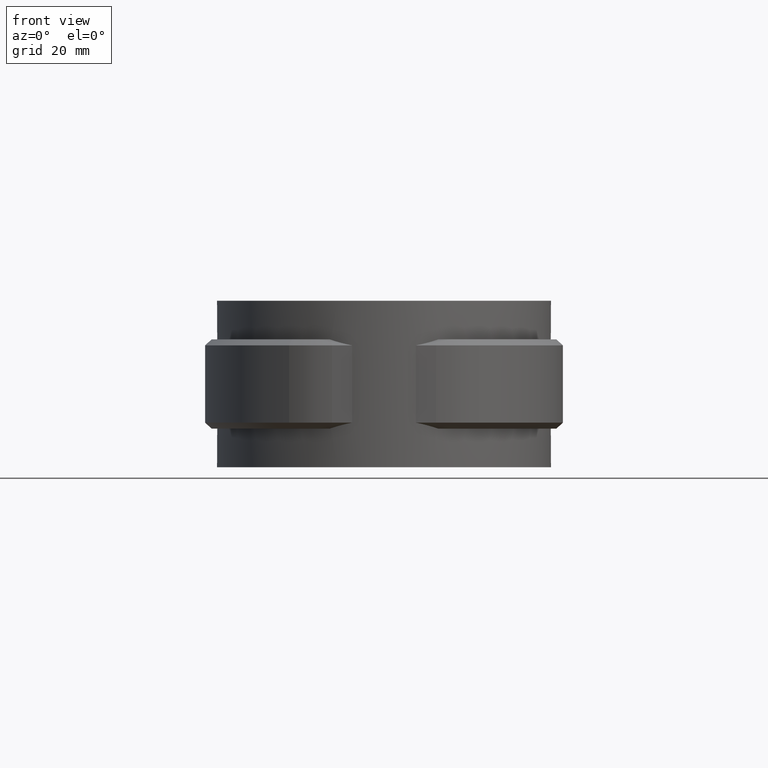
[diagram: clean part render]
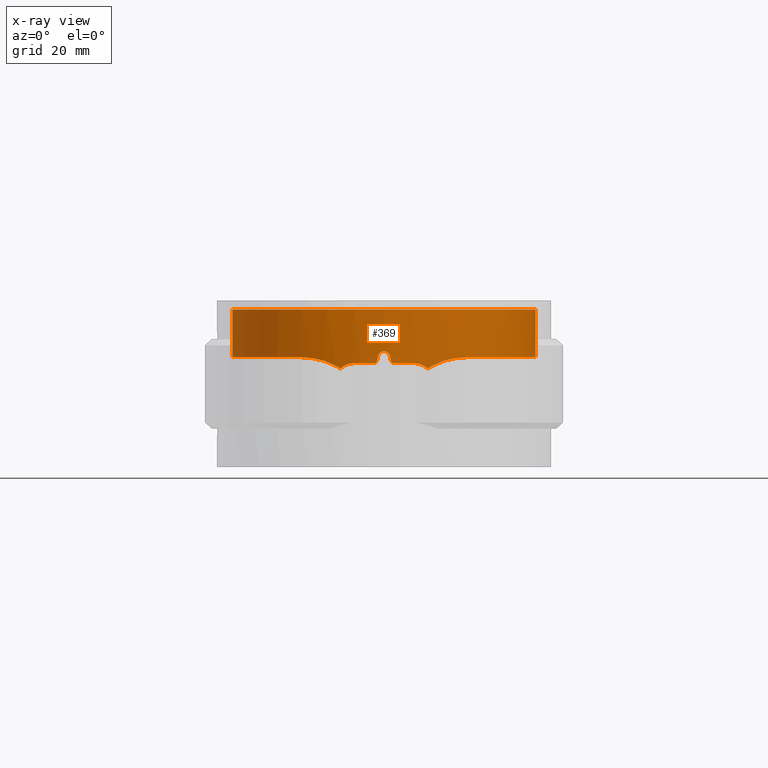
[diagram: x-ray — body ghosted, one internal face saturated and labeled with its STEP entity id]
A machine part, front view, then the same camera in x-ray: the body is ghosted and one INTERNAL B-rep face — a face not visible from any outside direction — is saturated and labeled: STEP entity #369.
In plain terms, the highlighted cylindrical surface (partial cylindrical patch) has radius 25.5 mm, axis along (0, 0, 1).
Its self-contained STEP definition (entity closure, byte-faithful):
#369 = ADVANCED_FACE( '', ( #736 ), #737, .F. );
#736 = FACE_OUTER_BOUND( '', #1583, .T. );
#737 = CYLINDRICAL_SURFACE( '', #1584, 25.5000000000000 );
#1583 = EDGE_LOOP( '', ( #3260, #3261, #3262, #3263, #3264, #3265, #3266, #3267, #3268, #3269, #3270, #3271, #3272, #3273, #3274, #3275, #3276, #3277 ) );
#1584 = AXIS2_PLACEMENT_3D( '', #3278, #3279, #3280 );
#3260 = ORIENTED_EDGE( '', *, *, #7416, .T. );
#3261 = ORIENTED_EDGE( '', *, *, #7417, .T. );
#3262 = ORIENTED_EDGE( '', *, *, #7418, .T. );
#3263 = ORIENTED_EDGE( '', *, *, #7419, .T. );
#3264 = ORIENTED_EDGE( '', *, *, #7420, .T. );
#3265 = ORIENTED_EDGE( '', *, *, #7421, .T. );
#3266 = ORIENTED_EDGE( '', *, *, #7422, .T. );
#3267 = ORIENTED_EDGE( '', *, *, #7423, .T. );
#3268 = ORIENTED_EDGE( '', *, *, #7424, .T. );
#3269 = ORIENTED_EDGE( '', *, *, #7393, .T. );
#3270 = ORIENTED_EDGE( '', *, *, #7401, .T. );
#3271 = ORIENTED_EDGE( '', *, *, #7406, .T. );
#3272 = ORIENTED_EDGE( '', *, *, #7425, .T. );
#3273 = ORIENTED_EDGE( '', *, *, #7426, .F. );
#3274 = ORIENTED_EDGE( '', *, *, #7427, .T. );
#3275 = ORIENTED_EDGE( '', *, *, #7428, .T. );
#3276 = ORIENTED_EDGE( '', *, *, #7429, .T. );
#3277 = ORIENTED_EDGE( '', *, *, #7430, .T. );
#3278 = CARTESIAN_POINT( '', ( 0.000000000000000, 0.000000000000000, 0.000000000000000 ) );
#3279 = DIRECTION( '', ( 0.000000000000000, 0.000000000000000, 1.00000000000000 ) );
#3280 = DIRECTION( '', ( 1.00000000000000, -6.12303176911189E-017, 0.000000000000000 ) );
#7393 = EDGE_CURVE( '', #8387, #8385, #8388, .T. );
#7401 = EDGE_CURVE( '', #8385, #8401, #8402, .F. );
#7406 = EDGE_CURVE( '', #8401, #8408, #8410, .T. );
#7416 = EDGE_CURVE( '', #8428, #8429, #8430, .T. );
#7417 = EDGE_CURVE( '', #8429, #8431, #8432, .T. );
#7418 = EDGE_CURVE( '', #8431, #8433, #8434, .T. );
#7419 = EDGE_CURVE( '', #8433, #8435, #8436, .T. );
#7420 = EDGE_CURVE( '', #8435, #8437, #8438, .T. );
#7421 = EDGE_CURVE( '', #8437, #8439, #8440, .T. );
#7422 = EDGE_CURVE( '', #8439, #8441, #8442, .T. );
#7423 = EDGE_CURVE( '', #8441, #8443, #8444, .T. );
#7424 = EDGE_CURVE( '', #8443, #8387, #8445, .T. );
#7425 = EDGE_CURVE( '', #8408, #8446, #8447, .T. );
#7426 = EDGE_CURVE( '', #8448, #8446, #8449, .T. );
#7427 = EDGE_CURVE( '', #8448, #8450, #8451, .T. );
#7428 = EDGE_CURVE( '', #8450, #8452, #8453, .T. );
#7429 = EDGE_CURVE( '', #8452, #8454, #8455, .T. );
#7430 = EDGE_CURVE( '', #8454, #8428, #8456, .T. );
#8385 = VERTEX_POINT( '', #10150 );
#8387 = VERTEX_POINT( '', #10155 );
#8388 = B_SPLINE_CURVE_WITH_KNOTS( '', 3, ( #10156, #10157, #10158, #10159, #10160, #10161, #10162, #10163, #10164, #10165 ), .UNSPECIFIED., .F., .F., ( 4, 2, 2, 2, 4 ), ( 1.73472347597681E-018, 0.000656875290145861, 0.00131375058029172, 0.00197062587043758, 0.00262750116058344 ), .UNSPECIFIED. );
#8401 = VERTEX_POINT( '', #10211 );
#8402 = B_SPLINE_CURVE_WITH_KNOTS( '', 3, ( #10212, #10213, #10214, #10215 ), .UNSPECIFIED., .F., .F., ( 4, 4 ), ( 6.25463444138550E-018, 0.000798238028060253 ), .UNSPECIFIED. );
#8408 = VERTEX_POINT( '', #10238 );
#8410 = B_SPLINE_CURVE_WITH_KNOTS( '', 3, ( #10246, #10247, #10248, #10249, #10250, #10251, #10252, #10253, #10254, #10255 ), .UNSPECIFIED., .F., .F., ( 4, 2, 2, 2, 4 ), ( 0.000000000000000, 0.00172797127034805, 0.00345594254069610, 0.00518391381104415, 0.00691188508139221 ), .UNSPECIFIED. );
#8428 = VERTEX_POINT( '', #10374 );
#8429 = VERTEX_POINT( '', #10375 );
#8430 = B_SPLINE_CURVE_WITH_KNOTS( '', 3, ( #10376, #10377, #10378, #10379 ), .UNSPECIFIED., .F., .F., ( 4, 4 ), ( 1.44722106622351E-016, 0.000798238028063362 ), .UNSPECIFIED. );
#8431 = VERTEX_POINT( '', #10380 );
#8432 = B_SPLINE_CURVE_WITH_KNOTS( '', 3, ( #10381, #10382, #10383, #10384, #10385, #10386, #10387, #10388, #10389, #10390 ), .UNSPECIFIED., .F., .F., ( 4, 2, 2, 2, 4 ), ( 1.08567168088659E-014, 0.000656997080052869, 0.00131399416009488, 0.00197099124013689, 0.00262798832017891 ), .UNSPECIFIED. );
#8433 = VERTEX_POINT( '', #10391 );
#8434 = CIRCLE( '', #10392, 25.5000000000000 );
#8435 = VERTEX_POINT( '', #10393 );
#8436 = B_SPLINE_CURVE_WITH_KNOTS( '', 3, ( #10394, #10395, #10396, #10397, #10398, #10399 ), .UNSPECIFIED., .F., .F., ( 4, 2, 4 ), ( 5.30005840330695E-013, 0.000336083198820052, 0.000672166397110099 ), .UNSPECIFIED. );
#8437 = VERTEX_POINT( '', #10400 );
#8438 = ELLIPSE( '', #10401, 116.166725925969, 25.5000000000000 );
#8439 = VERTEX_POINT( '', #10402 );
#8440 = B_SPLINE_CURVE_WITH_KNOTS( '', 3, ( #10403, #10404, #10405, #10406, #10407, #10408, #10409, #10410, #10411, #10412 ), .UNSPECIFIED., .F., .F., ( 4, 2, 2, 2, 4 ), ( 9.26342742239755E-019, 0.000671619266939465, 0.00134323853387893, 0.00201485780081839, 0.00268647706775786 ), .UNSPECIFIED. );
#8441 = VERTEX_POINT( '', #10413 );
#8442 = ELLIPSE( '', #10414, 116.166785185313, 25.5000000000000 );
#8443 = VERTEX_POINT( '', #10415 );
#8444 = B_SPLINE_CURVE_WITH_KNOTS( '', 3, ( #10416, #10417, #10418, #10419, #10420, #10421 ), .UNSPECIFIED., .F., .F., ( 4, 2, 4 ), ( 1.78811203067275E-018, 0.000336089115589762, 0.000672178231179522 ), .UNSPECIFIED. );
#8445 = CIRCLE( '', #10422, 25.5000000000000 );
#8446 = VERTEX_POINT( '', #10423 );
#8447 = B_SPLINE_CURVE_WITH_KNOTS( '', 3, ( #10424, #10425, #10426, #10427, #10428, #10429, #10430, #10431, #10432, #10433, #10434, #10435, #10436, #10437, #10438, #10439, #10440, #10441, #10442, #10443, #10444, #10445, #10446, #10447, #10448, #10449, #10450, #10451, #10452, #10453, #10454, #10455, #10456, #10457, #10458, #10459, #10460, #10461, #10462, #10463, #10464, #10465 ), .UNSPECIFIED., .F., .F., ( 4, 2, 2, 2, 2, 2, 2, 2, 2, 2, 2, 2, 2, 2, 2, 2, 2, 2, 2, 2, 4 ), ( 6.25463444138550E-018, 0.00367893687146762, 0.00735787374293524, 0.00919734217866904, 0.0110368106144029, 0.0147157474858705, 0.0165552159216043, 0.0183946843573381, 0.0220736212288057, 0.0257525581002733, 0.0294314949717409, 0.0331104318432085, 0.0349499002789423, 0.0367893687146761, 0.0404683055861437, 0.0423077740218775, 0.0441472424576113, 0.0478261793290789, 0.0515051162005465, 0.0551840530720141, 0.0588629899434817 ), .UNSPECIFIED. );
#8448 = VERTEX_POINT( '', #10466 );
#8449 = LINE( '', #10467, #10468 );
#8450 = VERTEX_POINT( '', #10469 );
#8451 = CIRCLE( '', #10470, 25.5000000000000 );
#8452 = VERTEX_POINT( '', #10471 );
#8453 = LINE( '', #10472, #10473 );
#8454 = VERTEX_POINT( '', #10474 );
#8455 = B_SPLINE_CURVE_WITH_KNOTS( '', 3, ( #10475, #10476, #10477, #10478, #10479, #10480, #10481, #10482, #10483, #10484, #10485, #10486, #10487, #10488, #10489, #10490, #10491, #10492, #10493, #10494, #10495, #10496, #10497, #10498, #10499, #10500, #10501, #10502, #10503, #10504, #10505, #10506, #10507, #10508, #10509, #10510, #10511, #10512, #10513, #10514, #10515, #10516 ), .UNSPECIFIED., .F., .F., ( 4, 2, 2, 2, 2, 2, 2, 2, 2, 2, 2, 2, 2, 2, 2, 2, 2, 2, 2, 2, 4 ), ( 8.67361737988404E-019, 0.00367893654871731, 0.00735787309743461, 0.00919734137179327, 0.0110368096461519, 0.0147157461948692, 0.0165552144692279, 0.0183946827435865, 0.0220736192923038, 0.0257525558410211, 0.0294314923897385, 0.0331104289384558, 0.0349498972128144, 0.0367893654871731, 0.0404683020358904, 0.0423077703102490, 0.0441472385846077, 0.0478261751333250, 0.0515051116820423, 0.0551840482307596, 0.0588629847794769 ), .UNSPECIFIED. );
#8456 = B_SPLINE_CURVE_WITH_KNOTS( '', 3, ( #10517, #10518, #10519, #10520, #10521, #10522, #10523, #10524, #10525, #10526 ), .UNSPECIFIED., .F., .F., ( 4, 2, 2, 2, 4 ), ( 1.73472347597681E-018, 0.00173657544033172, 0.00347315088066344, 0.00520972632099516, 0.00694630176132688 ), .UNSPECIFIED. );
#10150 = CARTESIAN_POINT( '', ( -7.34939546608904, -24.4179521312298, -9.90570993450898 ) );
#10155 = CARTESIAN_POINT( '', ( -5.00000000000005, -25.0049995001000, -9.00000000000000 ) );
#10156 = CARTESIAN_POINT( '', ( -5.00000000000004, -25.0049995001000, -9.00000000000000 ) );
#10157 = CARTESIAN_POINT( '', ( -5.21785024917576, -24.9614381616615, -9.00000000000000 ) );
#10158 = CARTESIAN_POINT( '', ( -5.43170297572860, -24.9157182564734, -9.02015661897742 ) );
#10159 = CARTESIAN_POINT( '', ( -5.85190055052567, -24.8203882604455, -9.09853812784654 ) );
#10160 = CARTESIAN_POINT( '', ( -6.05950288665346, -24.7704539655439, -9.15726976414928 ) );
#10161 = CARTESIAN_POINT( '', ( -6.46137466474212, -24.6686765420101, -9.31240280371759 ) );
#10162 = CARTESIAN_POINT( '', ( -6.65244226158825, -24.6176876953620, -9.40728225736061 ) );
#10163 = CARTESIAN_POINT( '', ( -7.01566762756749, -24.5166462480015, -9.63075750786103 ) );
#10164 = CARTESIAN_POINT( '', ( -7.18870220699882, -24.4663181163641, -9.76018572371769 ) );
#10165 = CARTESIAN_POINT( '', ( -7.34939546608738, -24.4179521312303, -9.90570993450457 ) );
#10211 = CARTESIAN_POINT( '', ( -8.00834492137898, -24.2098412142712, -9.50509198069123 ) );
#10212 = CARTESIAN_POINT( '', ( -8.00834492137898, -24.2098412142712, -9.50509198069124 ) );
#10213 = CARTESIAN_POINT( '', ( -7.78678672940062, -24.2831301881978, -9.63391701784463 ) );
#10214 = CARTESIAN_POINT( '', ( -7.56687878413608, -24.3524932875473, -9.76706377273395 ) );
#10215 = CARTESIAN_POINT( '', ( -7.34939546609141, -24.4179521312291, -9.90570993451293 ) );
#10238 = CARTESIAN_POINT( '', ( -14.0380773796952, -21.2880807843660, -8.00256714084615 ) );
#10246 = CARTESIAN_POINT( '', ( -8.00834492137898, -24.2098412142712, -9.50509198069123 ) );
#10247 = CARTESIAN_POINT( '', ( -8.48983332359674, -24.0505702315961, -9.21551088680596 ) );
#10248 = CARTESIAN_POINT( '', ( -8.98884999455234, -23.8693963122353, -8.99045015204694 ) );
#10249 = CARTESIAN_POINT( '', ( -10.0012845353573, -23.4632012346555, -8.61836442464060 ) );
#10250 = CARTESIAN_POINT( '', ( -10.5175586698763, -23.2369189913460, -8.47219902970376 ) );
#10251 = CARTESIAN_POINT( '', ( -11.5430829606839, -22.7449044919392, -8.24286530814061 ) );
#10252 = CARTESIAN_POINT( '', ( -12.0531284718486, -22.4790097879914, -8.15951322728733 ) );
#10253 = CARTESIAN_POINT( '', ( -13.0588333618892, -21.9100583804314, -8.04379078831736 ) );
#10254 = CARTESIAN_POINT( '', ( -13.5529697894653, -21.6079770661447, -8.01159288399982 ) );
#10255 = CARTESIAN_POINT( '', ( -14.0380773796952, -21.2880807843659, -8.00256714084613 ) );
#10374 = CARTESIAN_POINT( '', ( 8.00834492137896, -24.2098412142711, -9.50509198069098 ) );
#10375 = CARTESIAN_POINT( '', ( 7.34939546608284, -24.4179521312317, -9.90570993450448 ) );
#10376 = CARTESIAN_POINT( '', ( 8.00834492137898, -24.2098412142712, -9.50509198069124 ) );
#10377 = CARTESIAN_POINT( '', ( 7.78678672939979, -24.2831301881981, -9.63391701784511 ) );
#10378 = CARTESIAN_POINT( '', ( 7.56687878413433, -24.3524932875478, -9.76706377273502 ) );
#10379 = CARTESIAN_POINT( '', ( 7.34939546608887, -24.4179521312299, -9.90570993451456 ) );
#10380 = CARTESIAN_POINT( '', ( 4.99999999999997, -25.0049995001000, -9.00000000000000 ) );
#10381 = CARTESIAN_POINT( '', ( 7.34939546607637, -24.4179521312336, -9.90570993449469 ) );
#10382 = CARTESIAN_POINT( '', ( 7.18867317861759, -24.4663268534216, -9.76015943554556 ) );
#10383 = CARTESIAN_POINT( '', ( 7.01739298879603, -24.5161510957156, -9.63197934985051 ) );
#10384 = CARTESIAN_POINT( '', ( 6.65451597925081, -24.6171258677583, -9.40839947675464 ) );
#10385 = CARTESIAN_POINT( '', ( 6.46172400214045, -24.6685855994418, -9.31255784850538 ) );
#10386 = CARTESIAN_POINT( '', ( 6.05972404065131, -24.7704004228430, -9.15733497262680 ) );
#10387 = CARTESIAN_POINT( '', ( 5.85412782847902, -24.8198636515774, -9.09909094924041 ) );
#10388 = CARTESIAN_POINT( '', ( 5.43379886269245, -24.9152618736964, -9.02041162410730 ) );
#10389 = CARTESIAN_POINT( '', ( 5.21787341681419, -24.9614335290602, -9.00000000000001 ) );
#10390 = CARTESIAN_POINT( '', ( 5.00000000000000, -25.0049995001000, -9.00000000000000 ) );
#10391 = CARTESIAN_POINT( '', ( 1.64999999946346, -25.4465616538221, -8.99999999999997 ) );
#10392 = AXIS2_PLACEMENT_3D( '', #13877, #13878, #13879 );
#10393 = CARTESIAN_POINT( '', ( 1.16219499999999, -25.4735019732658, -8.60975599999999 ) );
#10394 = CARTESIAN_POINT( '', ( 1.64999999892696, -25.4465616538569, -8.99999999999995 ) );
#10395 = CARTESIAN_POINT( '', ( 1.53659990932928, -25.4539147159428, -9.00000000024330 ) );
#10396 = CARTESIAN_POINT( '', ( 1.42648680303448, -25.4602242782139, -8.96144237389326 ) );
#10397 = CARTESIAN_POINT( '', ( 1.24913749939568, -25.4695414250784, -8.81968188045623 ) );
#10398 = CARTESIAN_POINT( '', ( 1.18713991431296, -25.4723638943821, -8.72062228805728 ) );
#10399 = CARTESIAN_POINT( '', ( 1.16219499999998, -25.4735019732658, -8.60975599999999 ) );
#10400 = CARTESIAN_POINT( '', ( 0.975609757981817, -25.4813301379683, -7.78048781325256 ) );
#10401 = AXIS2_PLACEMENT_3D( '', #13880, #13881, #13882 );
#10402 = CARTESIAN_POINT( '', ( -0.975610000000026, -25.4813301287021, -7.78048800000004 ) );
#10403 = CARTESIAN_POINT( '', ( 0.975609757981821, -25.4813301379683, -7.78048781325256 ) );
#10404 = CARTESIAN_POINT( '', ( 0.925760627941456, -25.4832387234868, -7.55893621431624 ) );
#10405 = CARTESIAN_POINT( '', ( 0.802002231077815, -25.4880019776319, -7.36098152789277 ) );
#10406 = CARTESIAN_POINT( '', ( 0.447412249788043, -25.4966914455417, -7.07730044565886 ) );
#10407 = CARTESIAN_POINT( '', ( 0.227096997064041, -25.5000000081517, -6.99999981140865 ) );
#10408 = CARTESIAN_POINT( '', ( -0.227098827707837, -25.4999999918483, -7.00000018172440 ) );
#10409 = CARTESIAN_POINT( '', ( -0.447442086841616, -25.4966908125914, -7.07731897433819 ) );
#10410 = CARTESIAN_POINT( '', ( -0.802000627794619, -25.4880019186867, -7.36098526735058 ) );
#10411 = CARTESIAN_POINT( '', ( -0.925760910065688, -25.4832387131592, -7.55893638128833 ) );
#10412 = CARTESIAN_POINT( '', ( -0.975610000000030, -25.4813301287021, -7.78048800000004 ) );
#10413 = CARTESIAN_POINT( '', ( -1.16219512100915, -25.4735019677449, -8.60975609337373 ) );
#10414 = AXIS2_PLACEMENT_3D( '', #13883, #13884, #13885 );
#10415 = CARTESIAN_POINT( '', ( -1.65000000000003, -25.4465616537873, -8.99999999999997 ) );
#10416 = CARTESIAN_POINT( '', ( -1.16219512100915, -25.4735019677449, -8.60975609337373 ) );
#10417 = CARTESIAN_POINT( '', ( -1.18714002699007, -25.4723638891226, -8.72062234662147 ) );
#10418 = CARTESIAN_POINT( '', ( -1.24913144108471, -25.4695417339208, -8.81967596727058 ) );
#10419 = CARTESIAN_POINT( '', ( -1.42648745791825, -25.4602242532433, -8.96144389594983 ) );
#10420 = CARTESIAN_POINT( '', ( -1.53659994153401, -25.4539147138594, -8.99999999999994 ) );
#10421 = CARTESIAN_POINT( '', ( -1.65000000000003, -25.4465616537873, -8.99999999999994 ) );
#10422 = AXIS2_PLACEMENT_3D( '', #13886, #13887, #13888 );
#10423 = CARTESIAN_POINT( '', ( -6.02727272727275, 24.7774490912821, -8.00435030719461 ) );
#10424 = CARTESIAN_POINT( '', ( -14.0380773796952, -21.2880807843660, -8.00256714084613 ) );
#10425 = CARTESIAN_POINT( '', ( -15.0765748335687, -20.6032605902036, -8.00207340689075 ) );
#10426 = CARTESIAN_POINT( '', ( -16.0523639473271, -19.8513548135207, -8.00459036403530 ) );
#10427 = CARTESIAN_POINT( '', ( -17.8836958658101, -18.2188939952168, -8.00903135403918 ) );
#10428 = CARTESIAN_POINT( '', ( -18.7392252450658, -17.3383246082448, -8.01096774511734 ) );
#10429 = CARTESIAN_POINT( '', ( -19.9303857377764, -15.9188956933258, -8.01148110754757 ) );
#10430 = CARTESIAN_POINT( '', ( -20.3134828182761, -15.4271260931492, -8.01128025687242 ) );
#10431 = CARTESIAN_POINT( '', ( -21.0386748467039, -14.4224812149987, -8.01020889057149 ) );
#10432 = CARTESIAN_POINT( '', ( -21.3810845038200, -13.9096038910828, -8.00934322425378 ) );
#10433 = CARTESIAN_POINT( '', ( -22.3491571729683, -12.3400402561434, -8.00627899012388 ) );
#10434 = CARTESIAN_POINT( '', ( -22.9159649377144, -11.2525798041516, -8.00350407266921 ) );
#10435 = CARTESIAN_POINT( '', ( -23.6482491570491, -9.55972343349784, -8.00235259351094 ) );
#10436 = CARTESIAN_POINT( '', ( -23.8726141413114, -8.98512090568259, -8.00261977236998 ) );
#10437 = CARTESIAN_POINT( '', ( -24.2809248362162, -7.81478040175772, -8.00388927620167 ) );
#10438 = CARTESIAN_POINT( '', ( -24.4645155229831, -7.21933194521092, -8.00485791612355 ) );
#10439 = CARTESIAN_POINT( '', ( -24.9456398910393, -5.43048289420763, -8.00775959323831 ) );
#10440 = CARTESIAN_POINT( '', ( -25.1774584165853, -4.22498207278109, -8.00958799193541 ) );
#10441 = CARTESIAN_POINT( '', ( -25.4667570883330, -1.78862216190127, -8.01053593061585 ) );
#10442 = CARTESIAN_POINT( '', ( -25.5242275512407, -0.556664814739391, -8.00964804073774 ) );
#10443 = CARTESIAN_POINT( '', ( -25.4572985075182, 1.92925387199235, -8.00622397376217 ) );
#10444 = CARTESIAN_POINT( '', ( -25.3338276137651, 3.15463021899780, -8.00376500142649 ) );
#10445 = CARTESIAN_POINT( '', ( -24.9140823583699, 5.57162576120666, -8.00198679981766 ) );
#10446 = CARTESIAN_POINT( '', ( -24.6177909264120, 6.76324171536865, -8.00354427372974 ) );
#10447 = CARTESIAN_POINT( '', ( -24.0407996273683, 8.52477098965043, -8.00634346301504 ) );
#10448 = CARTESIAN_POINT( '', ( -23.8252540906671, 9.10992766866600, -8.00731782038831 ) );
#10449 = CARTESIAN_POINT( '', ( -23.3549453192577, 10.2557322384927, -8.00886216294281 ) );
#10450 = CARTESIAN_POINT( '', ( -23.1001622816006, 10.8171263074039, -8.00943360835255 ) );
#10451 = CARTESIAN_POINT( '', ( -22.2782570688612, 12.4675634315691, -8.01022930180087 ) );
#10452 = CARTESIAN_POINT( '', ( -21.6538720806443, 13.5230333142732, -8.00942431553693 ) );
#10453 = CARTESIAN_POINT( '', ( -20.6024251696231, 15.0388905393996, -8.00699078506969 ) );
#10454 = CARTESIAN_POINT( '', ( -20.2327247852361, 15.5329087892142, -8.00600289559679 ) );
#10455 = CARTESIAN_POINT( '', ( -19.4539299472975, 16.4978488687100, -8.00414443728872 ) );
#10456 = CARTESIAN_POINT( '', ( -19.0453063875102, 16.9678325370193, -8.00327935129464 ) );
#10457 = CARTESIAN_POINT( '', ( -17.7803400055229, 18.3203071721486, -8.00192275643554 ) );
#10458 = CARTESIAN_POINT( '', ( -16.8789739270039, 19.1534679280417, -8.00362196790977 ) );
#10459 = CARTESIAN_POINT( '', ( -14.9622992328879, 20.6853739672388, -8.00857382474502 ) );
#10460 = CARTESIAN_POINT( '', ( -13.9452719100082, 21.3851451340507, -8.01132449803802 ) );
#10461 = CARTESIAN_POINT( '', ( -11.7992644014956, 22.6400618513306, -8.01365421465964 ) );
#10462 = CARTESIAN_POINT( '', ( -10.6918342745611, 23.1829359891876, -8.01319224678381 ) );
#10463 = CARTESIAN_POINT( '', ( -8.41019594682174, 24.1046146073633, -8.00960796655416 ) );
#10464 = CARTESIAN_POINT( '', ( -7.23598862404178, 24.4834212301904, -8.00648046960973 ) );
#10465 = CARTESIAN_POINT( '', ( -6.02727272727275, 24.7774490912821, -8.00435030719460 ) );
#10466 = CARTESIAN_POINT( '', ( -6.02727272727273, 24.7774490912821, 0.000000000000000 ) );
#10467 = CARTESIAN_POINT( '', ( -6.02727272727273, 24.7774490912821, 0.000000000000000 ) );
#10468 = VECTOR( '', #13889, 1000.00000000000 );
#10469 = CARTESIAN_POINT( '', ( 6.02727272727272, 24.7774490912821, 0.000000000000000 ) );
#10470 = AXIS2_PLACEMENT_3D( '', #13890, #13891, #13892 );
#10471 = CARTESIAN_POINT( '', ( 6.02727272727271, 24.7774490912821, -8.00435030719460 ) );
#10472 = CARTESIAN_POINT( '', ( 6.02727272727272, 24.7774490912821, 0.000000000000000 ) );
#10473 = VECTOR( '', #13893, 1000.00000000000 );
#10474 = CARTESIAN_POINT( '', ( 14.0380773796952, -21.2880807843660, -8.00256714084615 ) );
#10475 = CARTESIAN_POINT( '', ( 6.02727272727271, 24.7774490912821, -8.00435030719460 ) );
#10476 = CARTESIAN_POINT( '', ( 7.23599043617386, 24.4834207893777, -8.00648047280332 ) );
#10477 = CARTESIAN_POINT( '', ( 8.40833073396198, 24.1050752320822, -8.00960165786445 ) );
#10478 = CARTESIAN_POINT( '', ( 10.6832558674306, 23.1866927729473, -8.01318213386108 ) );
#10479 = CARTESIAN_POINT( '', ( 11.7858329233706, 22.6466378563930, -8.01365063241760 ) );
#10480 = CARTESIAN_POINT( '', ( 13.3862508932498, 21.7126645761644, -8.01194020932680 ) );
#10481 = CARTESIAN_POINT( '', ( 13.9128744927420, 21.3790956027200, -8.01099314390398 ) );
#10482 = CARTESIAN_POINT( '', ( 14.9346540631046, 20.6782473497254, -8.00870389442222 ) );
#10483 = CARTESIAN_POINT( '', ( 15.4301058098800, 20.3110731277476, -8.00736616175200 ) );
#10484 = CARTESIAN_POINT( '', ( 16.8712199239447, 19.1604636138356, -8.00364013782478 ) );
#10485 = CARTESIAN_POINT( '', ( 17.7718715818085, 18.3281911366352, -8.00192910382051 ) );
#10486 = CARTESIAN_POINT( '', ( 19.0326615365575, 16.9819256063667, -8.00325822963939 ) );
#10487 = CARTESIAN_POINT( '', ( 19.4378359745583, 16.5167986474918, -8.00410926809193 ) );
#10488 = CARTESIAN_POINT( '', ( 20.2172730657249, 15.5530053276380, -8.00596291424161 ) );
#10489 = CARTESIAN_POINT( '', ( 20.5911038168385, 15.0544916301789, -8.00696233647978 ) );
#10490 = CARTESIAN_POINT( '', ( 21.6478825447636, 13.5330809457384, -8.00941485428375 ) );
#10491 = CARTESIAN_POINT( '', ( 22.2730579252557, 12.4766092997537, -8.01022551509674 ) );
#10492 = CARTESIAN_POINT( '', ( 23.3678649736153, 10.2809423466617, -8.00918317122032 ) );
#10493 = CARTESIAN_POINT( '', ( 23.8378586430602, 9.14070903084016, -8.00732483371211 ) );
#10494 = CARTESIAN_POINT( '', ( 24.6140797702939, 6.77813715814396, -8.00356538833631 ) );
#10495 = CARTESIAN_POINT( '', ( 24.9115322156420, 5.58301647356335, -8.00198911275018 ) );
#10496 = CARTESIAN_POINT( '', ( 25.3323822198716, 3.16621561827068, -8.00374588587571 ) );
#10497 = CARTESIAN_POINT( '', ( 25.4557627807475, 1.94453246483196, -8.00619494150131 ) );
#10498 = CARTESIAN_POINT( '', ( 25.5073199262339, 0.0916323898620129, -8.00875896915984 ) );
#10499 = CARTESIAN_POINT( '', ( 25.5019716075597, -0.531937079970095, -8.00945183909587 ) );
#10500 = CARTESIAN_POINT( '', ( 25.4460859163682, -1.76924403818119, -8.01022075164432 ) );
#10501 = CARTESIAN_POINT( '', ( 25.3957817943380, -2.38369131147522, -8.01030010625810 ) );
#10502 = CARTESIAN_POINT( '', ( 25.1793005739384, -4.21469945113368, -8.00960044908885 ) );
#10503 = CARTESIAN_POINT( '', ( 24.9478887611008, -5.41898940567200, -8.00777838101160 ) );
#10504 = CARTESIAN_POINT( '', ( 24.4699097122901, -7.20081027566576, -8.00488788943961 ) );
#10505 = CARTESIAN_POINT( '', ( 24.2886897740294, -7.79063256149351, -8.00392447499050 ) );
#10506 = CARTESIAN_POINT( '', ( 23.8813713223785, -8.96183633023490, -8.00263638335562 ) );
#10507 = CARTESIAN_POINT( '', ( 23.6553997221500, -9.54217470382321, -8.00235062104054 ) );
#10508 = CARTESIAN_POINT( '', ( 22.9212815692395, -11.2422856926676, -8.00347753568807 ) );
#10509 = CARTESIAN_POINT( '', ( 22.3541015416671, -12.3308245985621, -8.00625745362342 ) );
#10510 = CARTESIAN_POINT( '', ( 21.0671094039184, -14.4198471690583, -8.01034287151952 ) );
#10511 = CARTESIAN_POINT( '', ( 20.3460259093578, -15.4218763635057, -8.01164285375985 ) );
#10512 = CARTESIAN_POINT( '', ( 18.7496539580305, -17.3275941010177, -8.01098931174754 ) );
#10513 = CARTESIAN_POINT( '', ( 17.8905079229677, -18.2124564405394, -8.00904794290000 ) );
#10514 = CARTESIAN_POINT( '', ( 16.0539679187839, -19.8502885974731, -8.00459418441659 ) );
#10515 = CARTESIAN_POINT( '', ( 15.0765755120066, -20.6032601428188, -8.00207340656820 ) );
#10516 = CARTESIAN_POINT( '', ( 14.0380773796952, -21.2880807843660, -8.00256714084613 ) );
#10517 = CARTESIAN_POINT( '', ( 14.0380773796952, -21.2880807843660, -8.00256714084613 ) );
#10518 = CARTESIAN_POINT( '', ( 13.5533081799099, -21.6077539200897, -8.01158658802487 ) );
#10519 = CARTESIAN_POINT( '', ( 13.0599904453706, -21.9093280854432, -8.04374183318710 ) );
#10520 = CARTESIAN_POINT( '', ( 12.0570345764822, -22.4768753346695, -8.15898000554411 ) );
#10521 = CARTESIAN_POINT( '', ( 11.5460437637076, -22.7433785813848, -8.24235852946530 ) );
#10522 = CARTESIAN_POINT( '', ( 10.5222652635920, -23.2347655381380, -8.47099233953588 ) );
#10523 = CARTESIAN_POINT( '', ( 10.0056174788121, -23.4614129377732, -8.61688839015065 ) );
#10524 = CARTESIAN_POINT( '', ( 8.98850884475520, -23.8695828810807, -8.99045959509712 ) );
#10525 = CARTESIAN_POINT( '', ( 8.48867257435765, -24.0509541944727, -9.21620899507360 ) );
#10526 = CARTESIAN_POINT( '', ( 8.00834492137897, -24.2098412142711, -9.50509198069118 ) );
#13877 = CARTESIAN_POINT( '', ( 0.000000000000000, 0.000000000000000, -9.00000000000001 ) );
#13878 = DIRECTION( '', ( 6.12303176911189E-017, -3.13145149531439E-016, -1.00000000000000 ) );
#13879 = DIRECTION( '', ( 0.000000000000000, 1.00000000000000, -3.13145149531439E-016 ) );
#13880 = CARTESIAN_POINT( '', ( 0.000000000000000, 0.000000000000000, -3.44444212055030 ) );
#13881 = DIRECTION( '', ( -0.975609781292647, -1.70596433957388E-016, -0.219512083143762 ) );
#13882 = DIRECTION( '', ( 0.219512083143762, 3.83841770684856E-017, -0.975609781292647 ) );
#13883 = CARTESIAN_POINT( '', ( 0.000000000000000, 0.000000000000000, -3.44443890776445 ) );
#13884 = DIRECTION( '', ( 0.975609806487711, 3.31181834532395E-017, -0.219511971165610 ) );
#13885 = DIRECTION( '', ( -0.219511971165610, -7.45158328965245E-018, -0.975609806487711 ) );
#13886 = CARTESIAN_POINT( '', ( 0.000000000000000, 0.000000000000000, -9.00000000000001 ) );
#13887 = DIRECTION( '', ( 6.12303176911189E-017, -3.13145149531439E-016, -1.00000000000000 ) );
#13888 = DIRECTION( '', ( 0.000000000000000, 1.00000000000000, -3.13145149531439E-016 ) );
#13889 = DIRECTION( '', ( 0.000000000000000, 0.000000000000000, -1.00000000000000 ) );
#13890 = CARTESIAN_POINT( '', ( 0.000000000000000, 0.000000000000000, 0.000000000000000 ) );
#13891 = DIRECTION( '', ( 0.000000000000000, 0.000000000000000, 1.00000000000000 ) );
#13892 = DIRECTION( '', ( 1.00000000000000, 0.000000000000000, 0.000000000000000 ) );
#13893 = DIRECTION( '', ( 0.000000000000000, 0.000000000000000, -1.00000000000000 ) );